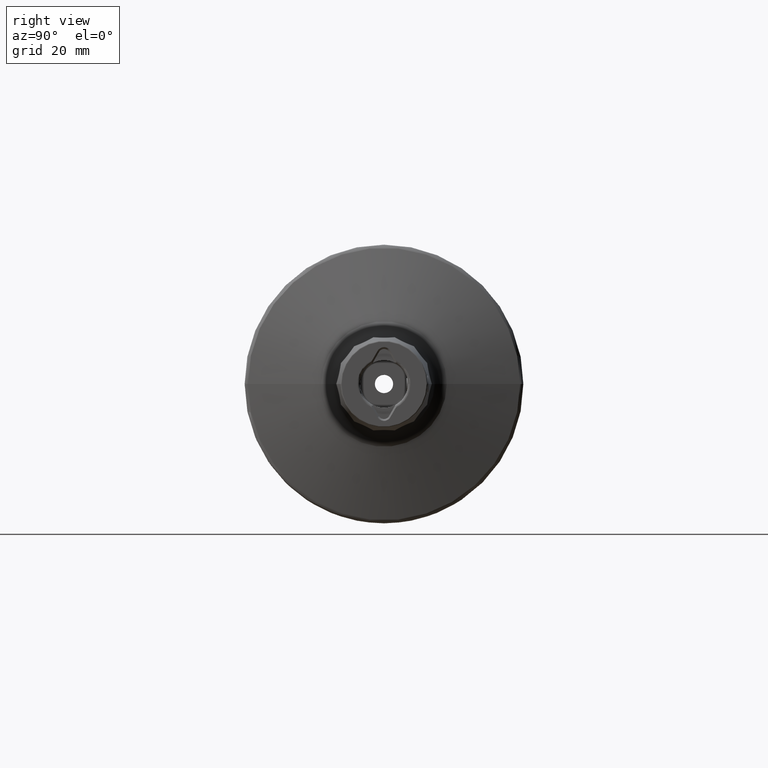
[diagram: clean part render]
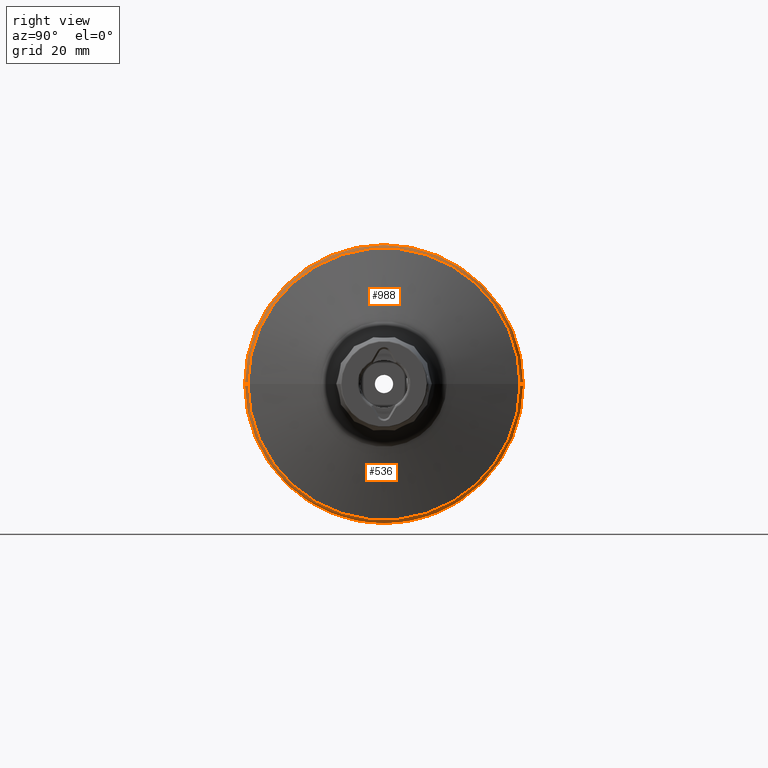
[diagram: same view with one multi-face feature highlighted, each face labeled with its STEP entity id]
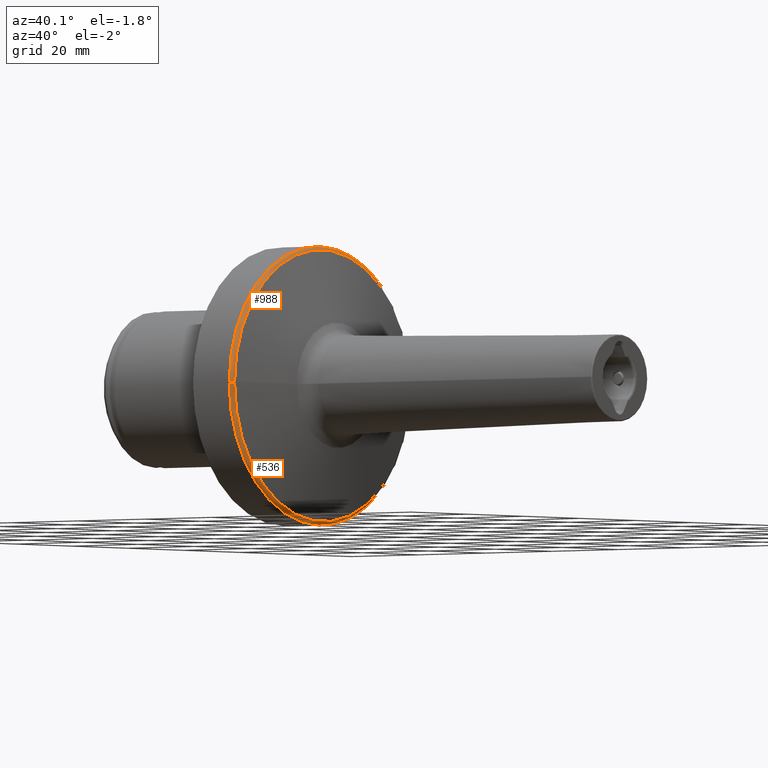
[diagram: same view with one multi-face feature highlighted, each face labeled with its STEP entity id]
A machine part, right view. The highlighted faces form ONE feature: a constant-radius fillet chain: 2 tangent blend faces with common blend radius 1 mm. The faces share edges in the B-rep.
A second angle (auxiliary view) of the same feature is appended — it is thin or edge-on in the first view.
Their STEP definitions:
[1] entity #536 (Torus):
#156 = EDGE_CURVE ( 'NONE', #4327, #2930, #2411, .T. ) ;
#185 = CIRCLE ( 'NONE', #2671, 0.9999999999999991100 ) ;
#289 = AXIS2_PLACEMENT_3D ( 'NONE', #3709, #3792, #3648 ) ;
#381 = CARTESIAN_POINT ( 'NONE',  ( 11.23267301202104000, 32.00000000000000000, 3.918869757271529500E-015 ) ) ;
#413 = CARTESIAN_POINT ( 'NONE',  ( 11.23267301202104200, 3.918869757271530300E-015, -32.00000000000000000 ) ) ;
#426 = AXIS2_PLACEMENT_3D ( 'NONE', #1156, #1145, #1136 ) ;
#536 = ADVANCED_FACE ( 'NONE', ( #1343 ), #1327, .T. ) ;
#712 = CIRCLE ( 'NONE', #1907, 32.00000000000000000 ) ;
#723 = DIRECTION ( 'NONE',  ( 0.0000000000000000000, -1.000000000000000000, -1.224646799147349500E-016 ) ) ;
#751 = DIRECTION ( 'NONE',  ( 7.728581842569452900E-033, -1.224646799147353200E-016, 1.000000000000000000 ) ) ;
#756 = CARTESIAN_POINT ( 'NONE',  ( 11.23267301202104400, 31.00000000000000700, 3.796405077356795100E-015 ) ) ;
#1047 = AXIS2_PLACEMENT_3D ( 'NONE', #2946, #3031, #2973 ) ;
#1079 = CIRCLE ( 'NONE', #426, 31.25881904510252700 ) ;
#1080 = VERTEX_POINT ( 'NONE', #3003 ) ;
#1136 = DIRECTION ( 'NONE',  ( 1.109909797599084100E-016, -1.000000000000000000, 0.0000000000000000000 ) ) ;
#1145 = DIRECTION ( 'NONE',  ( 1.000000000000000000, 1.262173199317614300E-016, -0.0000000000000000000 ) ) ;
#1156 = CARTESIAN_POINT ( 'NONE',  ( 12.19859883831014900, 2.683673056987130700E-015, 0.0000000000000000000 ) ) ;
#1327 = TOROIDAL_SURFACE ( 'NONE', #289, 31.00000000000000400, 1.000000000000000000 ) ;
#1343 = FACE_OUTER_BOUND ( 'NONE', #2340, .T. ) ;
#1540 = EDGE_CURVE ( 'NONE', #2079, #4327, #1973, .T. ) ;
#1739 = EDGE_CURVE ( 'NONE', #4483, #1080, #185, .T. ) ;
#1906 = ORIENTED_EDGE ( 'NONE', *, *, #3146, .F. ) ;
#1907 = AXIS2_PLACEMENT_3D ( 'NONE', #3879, #3869, #3862 ) ;
#1973 = CIRCLE ( 'NONE', #4203, 1.000000000000000900 ) ;
#2079 = VERTEX_POINT ( 'NONE', #4150 ) ;
#2083 = ORIENTED_EDGE ( 'NONE', *, *, #3546, .F. ) ;
#2340 = EDGE_LOOP ( 'NONE', ( #3413, #2083, #2859, #1906, #3822 ) ) ;
#2411 = CIRCLE ( 'NONE', #1047, 32.00000000000000000 ) ;
#2671 = AXIS2_PLACEMENT_3D ( 'NONE', #3842, #3662, #3678 ) ;
#2859 = ORIENTED_EDGE ( 'NONE', *, *, #1739, .T. ) ;
#2930 = VERTEX_POINT ( 'NONE', #413 ) ;
#2946 = CARTESIAN_POINT ( 'NONE',  ( 11.23267301202104200, 0.0000000000000000000, 0.0000000000000000000 ) ) ;
#2973 = DIRECTION ( 'NONE',  ( 5.421010862427522200E-017, -1.000000000000000000, 0.0000000000000000000 ) ) ;
#3003 = CARTESIAN_POINT ( 'NONE',  ( 11.23267301202104400, -32.00000000000000000, 0.0000000000000000000 ) ) ;
#3031 = DIRECTION ( 'NONE',  ( -1.000000000000000000, -6.310865996588071700E-017, 0.0000000000000000000 ) ) ;
#3146 = EDGE_CURVE ( 'NONE', #2930, #1080, #712, .T. ) ;
#3413 = ORIENTED_EDGE ( 'NONE', *, *, #1540, .F. ) ;
#3546 = EDGE_CURVE ( 'NONE', #4483, #2079, #1079, .T. ) ;
#3648 = DIRECTION ( 'NONE',  ( 6.310865996588071700E-017, -1.000000000000000000, 0.0000000000000000000 ) ) ;
#3662 = DIRECTION ( 'NONE',  ( 0.0000000000000000000, -0.0000000000000000000, -1.000000000000000000 ) ) ;
#3678 = DIRECTION ( 'NONE',  ( -1.000000000000000000, 0.0000000000000000000, 0.0000000000000000000 ) ) ;
#3709 = CARTESIAN_POINT ( 'NONE',  ( 11.23267301202104600, 2.622714772463589200E-015, 0.0000000000000000000 ) ) ;
#3792 = DIRECTION ( 'NONE',  ( -1.000000000000000000, -6.310865996588071700E-017, 0.0000000000000000000 ) ) ;
#3822 = ORIENTED_EDGE ( 'NONE', *, *, #156, .F. ) ;
#3842 = CARTESIAN_POINT ( 'NONE',  ( 11.23267301202104700, -31.00000000000000000, 0.0000000000000000000 ) ) ;
#3862 = DIRECTION ( 'NONE',  ( 5.421010862427522200E-017, -1.000000000000000000, 0.0000000000000000000 ) ) ;
#3869 = DIRECTION ( 'NONE',  ( -1.000000000000000000, -6.310865996588071700E-017, 0.0000000000000000000 ) ) ;
#3879 = CARTESIAN_POINT ( 'NONE',  ( 11.23267301202104200, 0.0000000000000000000, 0.0000000000000000000 ) ) ;
#4150 = CARTESIAN_POINT ( 'NONE',  ( 12.19859883831014500, 31.25881904510240300, 3.828101268871098800E-015 ) ) ;
#4203 = AXIS2_PLACEMENT_3D ( 'NONE', #756, #751, #723 ) ;
#4327 = VERTEX_POINT ( 'NONE', #381 ) ;
#4483 = VERTEX_POINT ( 'NONE', #4576 ) ;
#4576 = CARTESIAN_POINT ( 'NONE',  ( 12.19859883831015200, -31.25881904510239600, 0.0000000000000000000 ) ) ;
[2] entity #988 (Torus):
#185 = CIRCLE ( 'NONE', #2671, 0.9999999999999991100 ) ;
#234 = TOROIDAL_SURFACE ( 'NONE', #4365, 31.00000000000000400, 1.000000000000000000 ) ;
#242 = FACE_OUTER_BOUND ( 'NONE', #1617, .T. ) ;
#248 = DIRECTION ( 'NONE',  ( 5.421010862427522200E-017, -1.000000000000000000, 0.0000000000000000000 ) ) ;
#255 = DIRECTION ( 'NONE',  ( -1.000000000000000000, -6.310865996588071700E-017, 0.0000000000000000000 ) ) ;
#262 = CARTESIAN_POINT ( 'NONE',  ( 11.23267301202104200, 0.0000000000000000000, 0.0000000000000000000 ) ) ;
#275 = DIRECTION ( 'NONE',  ( 5.421010862427522200E-017, -1.000000000000000000, 0.0000000000000000000 ) ) ;
#278 = DIRECTION ( 'NONE',  ( -1.000000000000000000, -6.310865996588071700E-017, 0.0000000000000000000 ) ) ;
#303 = CARTESIAN_POINT ( 'NONE',  ( 11.23267301202104200, 0.0000000000000000000, 0.0000000000000000000 ) ) ;
#381 = CARTESIAN_POINT ( 'NONE',  ( 11.23267301202104000, 32.00000000000000000, 3.918869757271529500E-015 ) ) ;
#723 = DIRECTION ( 'NONE',  ( 0.0000000000000000000, -1.000000000000000000, -1.224646799147349500E-016 ) ) ;
#751 = DIRECTION ( 'NONE',  ( 7.728581842569452900E-033, -1.224646799147353200E-016, 1.000000000000000000 ) ) ;
#756 = CARTESIAN_POINT ( 'NONE',  ( 11.23267301202104400, 31.00000000000000700, 3.796405077356795100E-015 ) ) ;
#896 = DIRECTION ( 'NONE',  ( 1.109909797599084100E-016, -1.000000000000000000, 0.0000000000000000000 ) ) ;
#953 = DIRECTION ( 'NONE',  ( 1.000000000000000000, 1.262173199317614300E-016, -0.0000000000000000000 ) ) ;
#979 = CARTESIAN_POINT ( 'NONE',  ( 12.19859883831014900, 2.683673056987130700E-015, 0.0000000000000000000 ) ) ;
#988 = ADVANCED_FACE ( 'NONE', ( #242 ), #234, .T. ) ;
#1080 = VERTEX_POINT ( 'NONE', #3003 ) ;
#1530 = EDGE_CURVE ( 'NONE', #2079, #4483, #3080, .T. ) ;
#1540 = EDGE_CURVE ( 'NONE', #2079, #4327, #1973, .T. ) ;
#1617 = EDGE_LOOP ( 'NONE', ( #3529, #3605, #3735, #3874, #3969 ) ) ;
#1632 = EDGE_CURVE ( 'NONE', #2252, #4327, #2099, .T. ) ;
#1640 = EDGE_CURVE ( 'NONE', #1080, #2252, #3074, .T. ) ;
#1739 = EDGE_CURVE ( 'NONE', #4483, #1080, #185, .T. ) ;
#1973 = CIRCLE ( 'NONE', #4203, 1.000000000000000900 ) ;
#2079 = VERTEX_POINT ( 'NONE', #4150 ) ;
#2099 = CIRCLE ( 'NONE', #3738, 32.00000000000000000 ) ;
#2252 = VERTEX_POINT ( 'NONE', #2839 ) ;
#2671 = AXIS2_PLACEMENT_3D ( 'NONE', #3842, #3662, #3678 ) ;
#2839 = CARTESIAN_POINT ( 'NONE',  ( 11.23267301202104200, 0.0000000000000000000, 32.00000000000000000 ) ) ;
#3003 = CARTESIAN_POINT ( 'NONE',  ( 11.23267301202104400, -32.00000000000000000, 0.0000000000000000000 ) ) ;
#3074 = CIRCLE ( 'NONE', #3489, 32.00000000000000000 ) ;
#3080 = CIRCLE ( 'NONE', #4302, 31.25881904510252700 ) ;
#3287 = DIRECTION ( 'NONE',  ( 6.310865996588071700E-017, -1.000000000000000000, 0.0000000000000000000 ) ) ;
#3345 = DIRECTION ( 'NONE',  ( -1.000000000000000000, -6.310865996588071700E-017, 0.0000000000000000000 ) ) ;
#3361 = CARTESIAN_POINT ( 'NONE',  ( 11.23267301202104600, 2.622714772463589200E-015, 0.0000000000000000000 ) ) ;
#3489 = AXIS2_PLACEMENT_3D ( 'NONE', #262, #255, #248 ) ;
#3529 = ORIENTED_EDGE ( 'NONE', *, *, #1530, .F. ) ;
#3605 = ORIENTED_EDGE ( 'NONE', *, *, #1540, .T. ) ;
#3662 = DIRECTION ( 'NONE',  ( 0.0000000000000000000, -0.0000000000000000000, -1.000000000000000000 ) ) ;
#3678 = DIRECTION ( 'NONE',  ( -1.000000000000000000, 0.0000000000000000000, 0.0000000000000000000 ) ) ;
#3735 = ORIENTED_EDGE ( 'NONE', *, *, #1632, .F. ) ;
#3738 = AXIS2_PLACEMENT_3D ( 'NONE', #303, #278, #275 ) ;
#3842 = CARTESIAN_POINT ( 'NONE',  ( 11.23267301202104700, -31.00000000000000000, 0.0000000000000000000 ) ) ;
#3874 = ORIENTED_EDGE ( 'NONE', *, *, #1640, .F. ) ;
#3969 = ORIENTED_EDGE ( 'NONE', *, *, #1739, .F. ) ;
#4150 = CARTESIAN_POINT ( 'NONE',  ( 12.19859883831014500, 31.25881904510240300, 3.828101268871098800E-015 ) ) ;
#4203 = AXIS2_PLACEMENT_3D ( 'NONE', #756, #751, #723 ) ;
#4302 = AXIS2_PLACEMENT_3D ( 'NONE', #979, #953, #896 ) ;
#4327 = VERTEX_POINT ( 'NONE', #381 ) ;
#4365 = AXIS2_PLACEMENT_3D ( 'NONE', #3361, #3345, #3287 ) ;
#4483 = VERTEX_POINT ( 'NONE', #4576 ) ;
#4576 = CARTESIAN_POINT ( 'NONE',  ( 12.19859883831015200, -31.25881904510239600, 0.0000000000000000000 ) ) ;